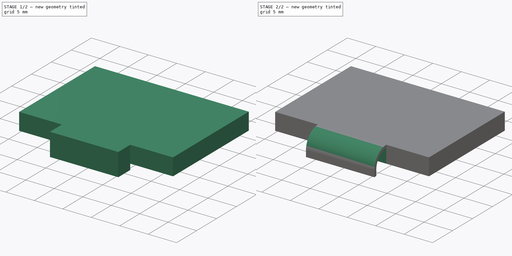
[diagram: build sequence overview — one tinted view per stage of 2, left to right]
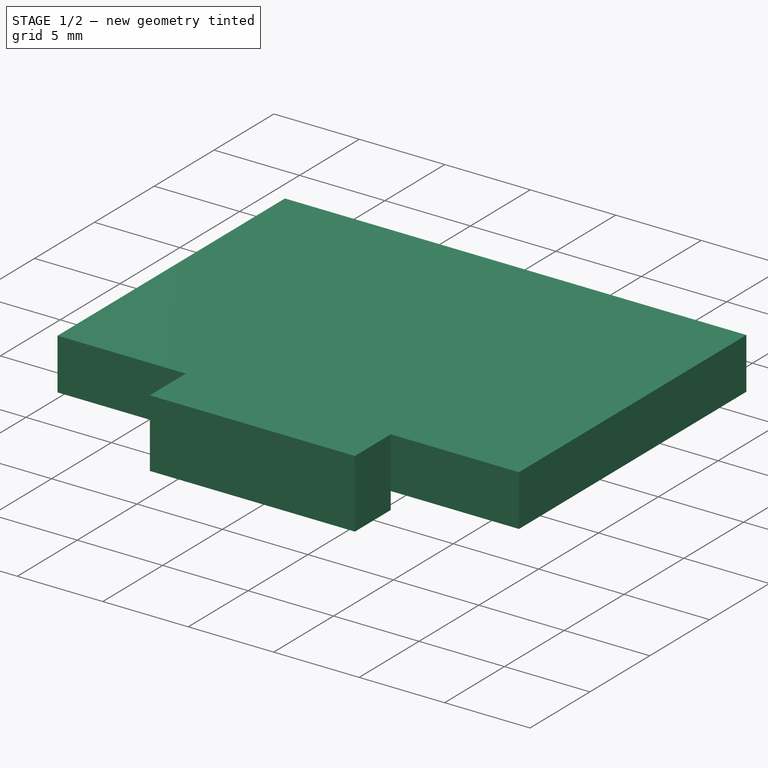
[diagram: stage 1 of 2 — iso view after this stage's code; geometry added in this stage tinted green]
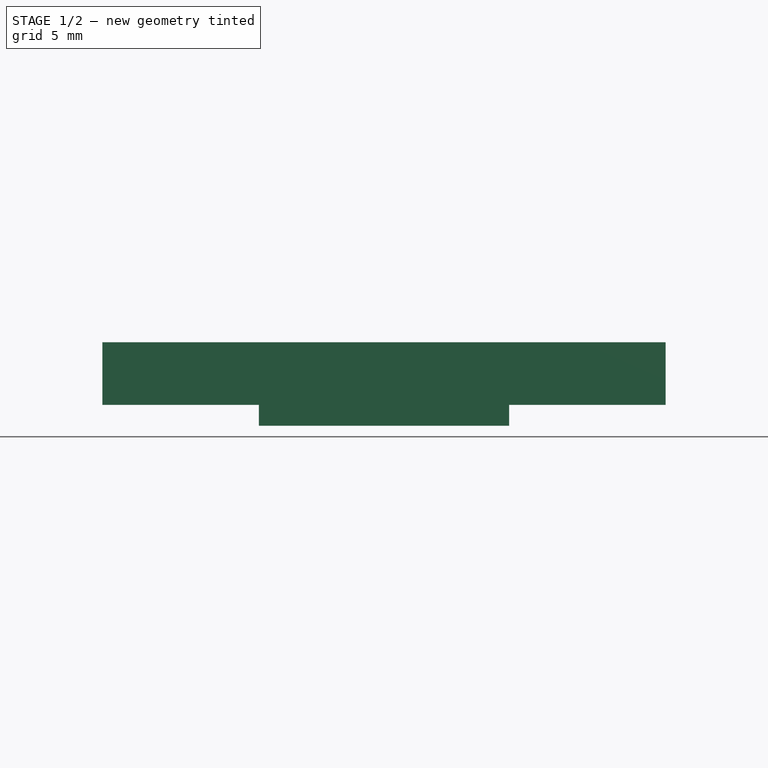
[diagram: stage 1 of 2 — front view after this stage's code; geometry added in this stage tinted green]
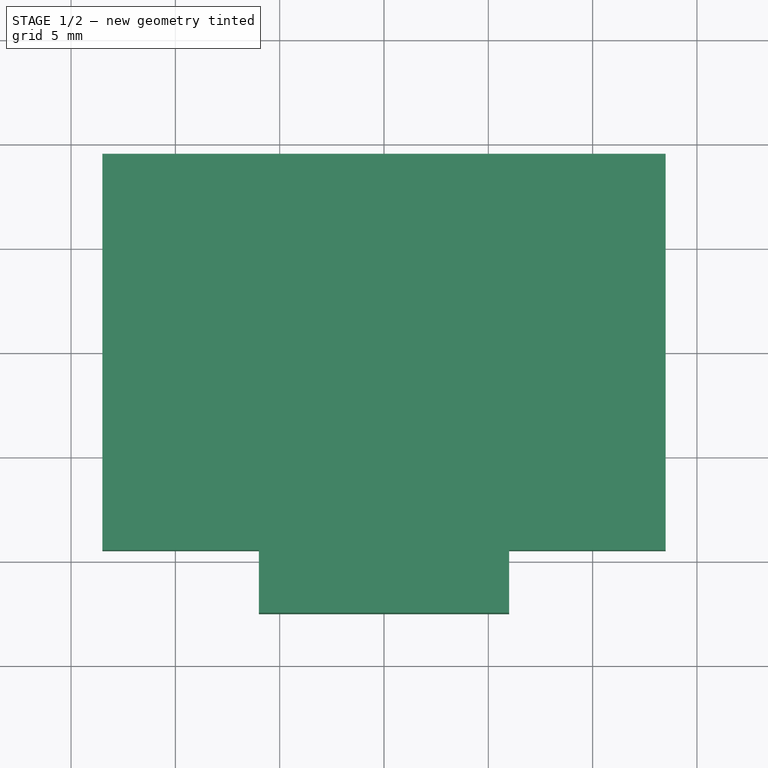
[diagram: stage 1 of 2 — top view after this stage's code; geometry added in this stage tinted green]
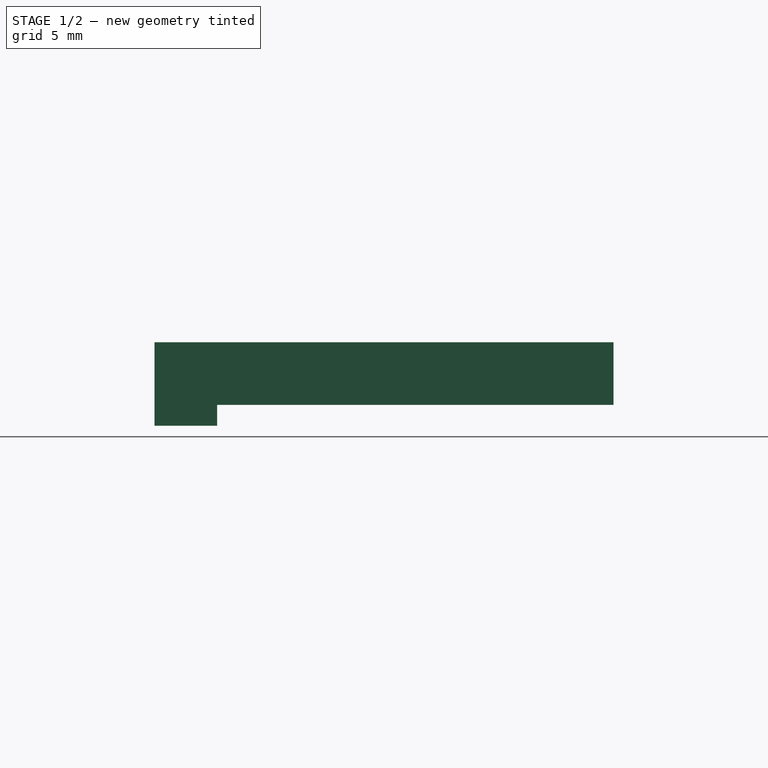
[diagram: stage 1 of 2 — right view after this stage's code; geometry added in this stage tinted green]
FCSTD DOCUMENT  (FreeCAD 0.19R24276 (Git))
Label: Display
License: All rights reserved
LicenseURL: http://en.wikipedia.org/wiki/All_rights_reserved
objects: Sketcher::SketchObject×4, PartDesign::Pocket×3, PartDesign::Pad×1, PartDesign::Body×1
note: 13 computed .brp shape members not serialized (recipe doc carries the construction recipe); baked Part::Feature solids carry a one-line shape summary decoded from their .brp

FEATURE [Sketcher::SketchObject] Sketch
  FullyConstrained = true
  sketch-geometry (8):
    g0: LineSegment StartX=-13.5 StartY=9.5 StartZ=0 EndX=13.5 EndY=9.5 EndZ=0
    g1: LineSegment StartX=13.5 StartY=9.5 StartZ=0 EndX=13.5 EndY=-9.5 EndZ=0
    g2: LineSegment StartX=-13.5 StartY=-9.5 StartZ=0 EndX=-13.5 EndY=9.5 EndZ=0
    g3: LineSegment StartX=6 StartY=-9.5 StartZ=0 EndX=6 EndY=-12.5 EndZ=0
    g4: LineSegment StartX=6 StartY=-12.5 StartZ=0 EndX=-6 EndY=-12.5 EndZ=0
    g5: LineSegment StartX=-6 StartY=-12.5 StartZ=0 EndX=-6 EndY=-9.5 EndZ=0
    g6: LineSegment StartX=-13.5 StartY=-9.5 StartZ=0 EndX=-6 EndY=-9.5 EndZ=0
    g7: LineSegment StartX=6 StartY=-9.5 StartZ=0 EndX=13.5 EndY=-9.5 EndZ=0
  constraints (24):
    c: Coincident(g0,g1)
    c: Coincident(g2,g0)
    c: Horizontal(g0)
    c: Vertical(g1)
    c: Vertical(g2)
    c: DistanceY(g1,g1) = 19
    c: DistanceX(g0,g0) = 27
    c: DistanceX(g0,g-1) = 13.5
    c: DistanceY(g-1,g0) = 9.5
    c: Coincident(g3,g4)
    c: Coincident(g4,g5)
    c: Horizontal(g4)
    c: Vertical(g3)
    c: Vertical(g5)
    c: DistanceX(g4,g4) = 12
    c: DistanceX(g4,g-1) = 6
    c: DistanceY(g3,g3) = 3
    c: Coincident(g6,g2)
    c: Horizontal(g6)
    c: Coincident(g7,g1)
    c: Horizontal(g7)
    c: Equal(g5,g3)
    c: Coincident(g6,g5)
    c: Coincident(g3,g7)
FEATURE [PartDesign::Pad] Pad
  Direction = (1,1,1)
  Length = 4
  Length2 = 100
  Profile = -> Sketch
  Type = 0
FEATURE [Sketcher::SketchObject] Sketch001
  FullyConstrained = true
  MapMode = 5
  Placement = pos=(0,0,0) rot=(1,0,0;3.14159rad)
  Support = -> [Pad]
  sketch-geometry (4):
    g0: LineSegment StartX=-13.5 StartY=9.5 StartZ=0 EndX=13.5 EndY=9.5 EndZ=0
    g1: LineSegment StartX=13.5 StartY=9.5 StartZ=0 EndX=13.5 EndY=-9.5 EndZ=0
    g2: LineSegment StartX=13.5 StartY=-9.5 StartZ=0 EndX=-13.5 EndY=-9.5 EndZ=0
    g3: LineSegment StartX=-13.5 StartY=-9.5 StartZ=0 EndX=-13.5 EndY=9.5 EndZ=0
  constraints (12):
    c: Coincident(g0,g1)
    c: Coincident(g1,g2)
    c: Coincident(g2,g3)
    c: Coincident(g3,g0)
    c: Horizontal(g0)
    c: Horizontal(g2)
    c: Vertical(g1)
    c: Vertical(g3)
    c: DistanceX(g0,g0) = 27
    c: DistanceY(g1,g1) = 19
    c: DistanceY(g1,g-1) = 9.5
    c: DistanceX(g0,g-1) = 13.5
FEATURE [PartDesign::Pocket] Pocket
  BaseFeature = -> Pad
  Length = 1
  Length2 = 100
  Profile = -> Sketch001
  Type = 0
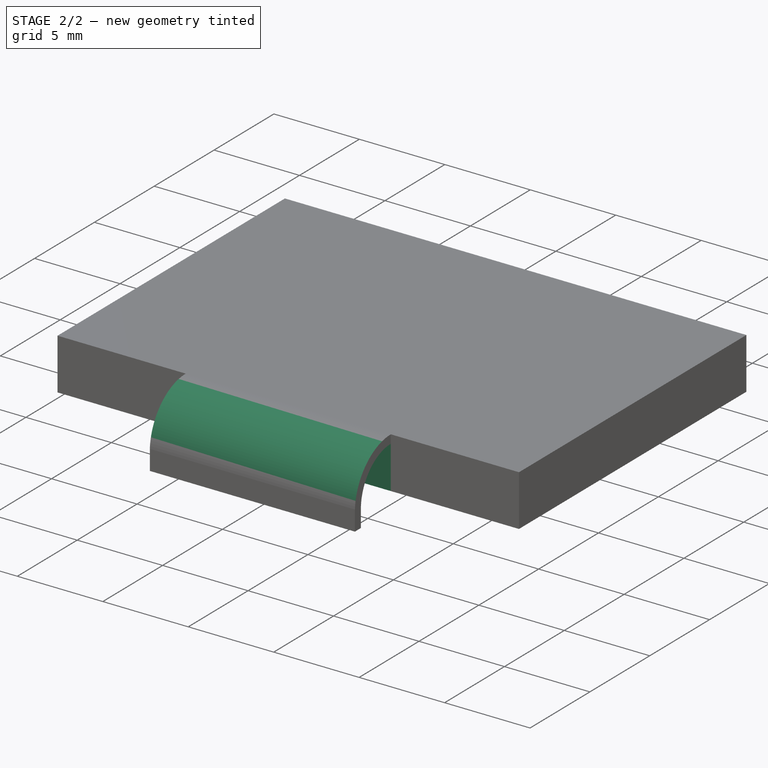
[diagram: stage 2 of 2 — iso view after this stage's code; geometry added in this stage tinted green]
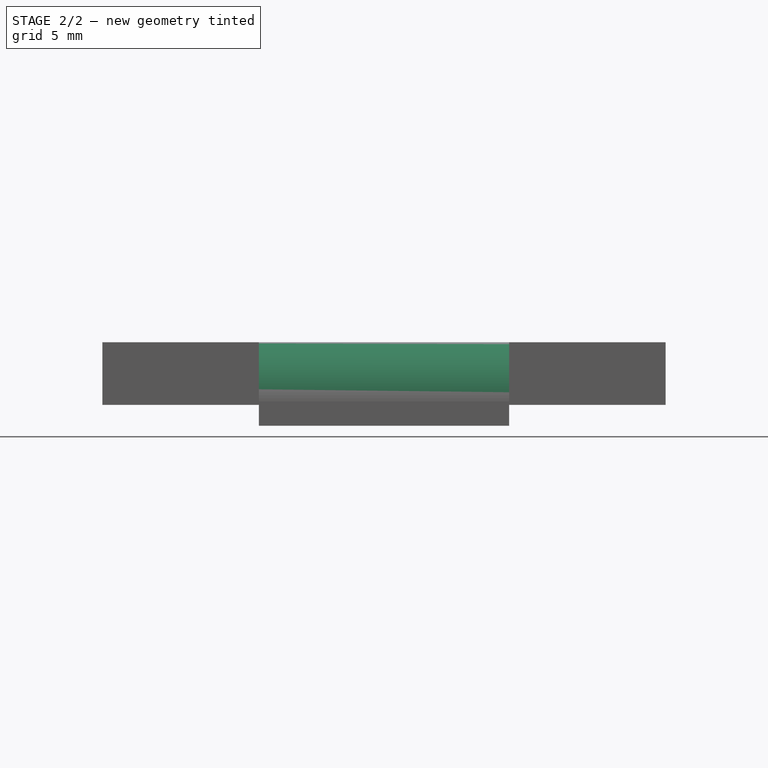
[diagram: stage 2 of 2 — front view after this stage's code; geometry added in this stage tinted green]
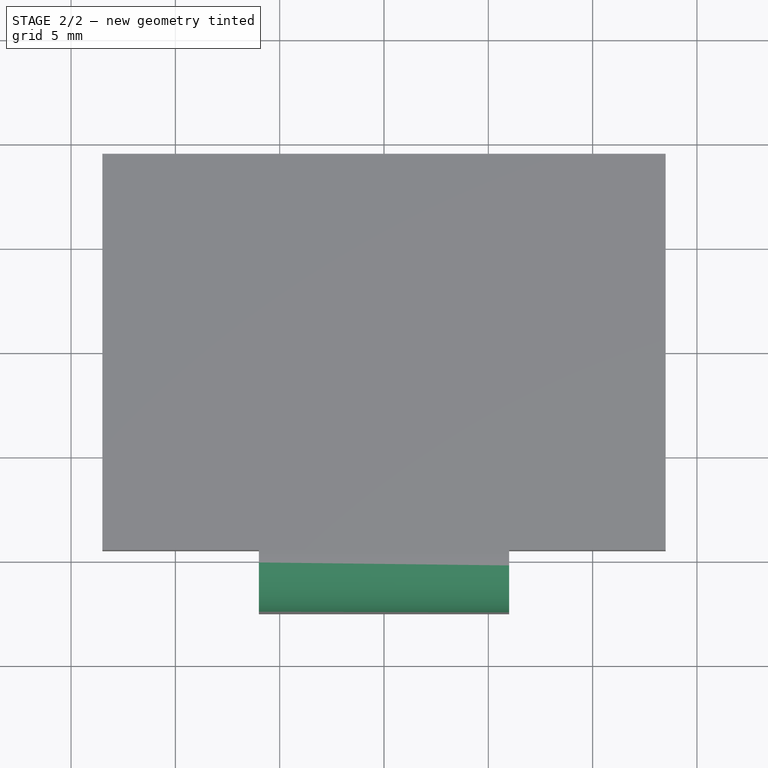
[diagram: stage 2 of 2 — top view after this stage's code; geometry added in this stage tinted green]
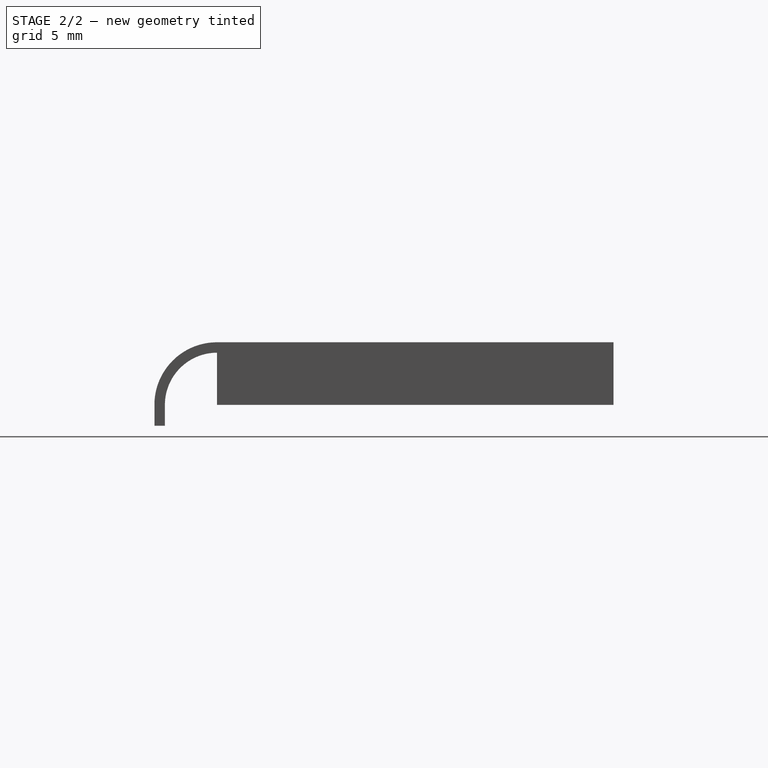
[diagram: stage 2 of 2 — right view after this stage's code; geometry added in this stage tinted green]
FEATURE [Sketcher::SketchObject] Sketch002
  FullyConstrained = false
  MapMode = 5
  Placement = pos=(-13.5,0,0) rot=(0.57735,-0.57735,-0.57735;2.0944rad)
  Support = -> [Pocket]
  sketch-geometry (5):
    g0: ArcOfCircle CenterX=9.50474 CenterY=1 CenterZ=0 NormalX=0 NormalY=0 NormalZ=1 AngleXU=0 Radius=3 StartAngle=1e-16 EndAngle=1.5708
    g1: LineSegment StartX=9.50474 StartY=4 StartZ=0 EndX=9.50474 EndY=5.57242 EndZ=0
    g2: LineSegment StartX=9.50474 StartY=5.57242 StartZ=0 EndX=13.0332 EndY=5.57242 EndZ=0
    g3: LineSegment StartX=13.0332 StartY=5.57242 StartZ=0 EndX=13.0332 EndY=1 EndZ=0
    g4: LineSegment StartX=13.0332 StartY=1 StartZ=0 EndX=12.5047 EndY=1 EndZ=0
  constraints (13):
    c: Angle(g0) = 1.5708
    c: DistanceX(g0,g0) = 0
    c: DistanceY(g-1,g0) = 4
    c: DistanceY(g-1,g0) = 1
    c: Coincident(g1,g0)
    c: Vertical(g1)
    c: Coincident(g2,g1)
    c: Horizontal(g2)
    c: Coincident(g3,g2)
    c: Vertical(g3)
    c: Coincident(g4,g3)
    c: Coincident(g4,g0)
    c: Horizontal(g4)
FEATURE [PartDesign::Pocket] Pocket001
  BaseFeature = -> Pocket
  Length = 27
  Length2 = 100
  Profile = -> Sketch002
  Type = 0
FEATURE [Sketcher::SketchObject] Sketch003
  FullyConstrained = false
  MapMode = 5
  Placement = pos=(-13.5,0,0) rot=(0.57735,-0.57735,-0.57735;2.0944rad)
  Support = -> [Pocket001]
  sketch-geometry (7):
    g0: ArcOfCircle CenterX=9.50152 CenterY=1 CenterZ=0 NormalX=0 NormalY=0 NormalZ=1 AngleXU=0 Radius=2.5 StartAngle=1e-16 EndAngle=1.5708
    g1: LineSegment StartX=10.1611 StartY=-0.269266 StartZ=0 EndX=12.0015 EndY=-0.269266 EndZ=0
    g2: LineSegment StartX=12.0015 StartY=-0.269266 StartZ=0 EndX=12.0015 EndY=1 EndZ=0
    g3: LineSegment StartX=9.50152 StartY=1 StartZ=0 EndX=9.32419 EndY=1 EndZ=0
    g4: LineSegment StartX=9.32419 StartY=1 StartZ=0 EndX=9.32419 EndY=-0.269266 EndZ=0
    g5: LineSegment StartX=9.32419 StartY=-0.269266 StartZ=0 EndX=10.1611 EndY=-0.269266 EndZ=0
    g6: LineSegment StartX=9.50152 StartY=3.5 StartZ=0 EndX=9.50152 EndY=1 EndZ=0
  constraints (17):
    c: Angle(g0) = 1.5708
    c: DistanceX(g0,g0) = 0
    c: DistanceY(g-1,g0) = 3.5
    c: DistanceY(g-1,g0) = 1
    c: Horizontal(g1)
    c: Coincident(g2,g1)
    c: Coincident(g2,g0)
    c: Vertical(g2)
    c: Coincident(g3,g0)
    c: Horizontal(g3)
    c: Coincident(g4,g3)
    c: Vertical(g4)
    c: Coincident(g5,g4)
    c: Coincident(g5,g1)
    c: Horizontal(g5)
    c: Coincident(g6,g0)
    c: Coincident(g6,g0)
FEATURE [PartDesign::Pocket] Pocket002
  BaseFeature = -> Pocket001
  Length = 27
  Length2 = 100
  Profile = -> Sketch003
  Type = 0
FEATURE [PartDesign::Body] Body
  Group = -> [Sketch,Pad,Sketch001,Pocket,Sketch002,Pocket001,Sketch003,Pocket002]
  Origin = -> Origin
  Tip = -> Pocket002
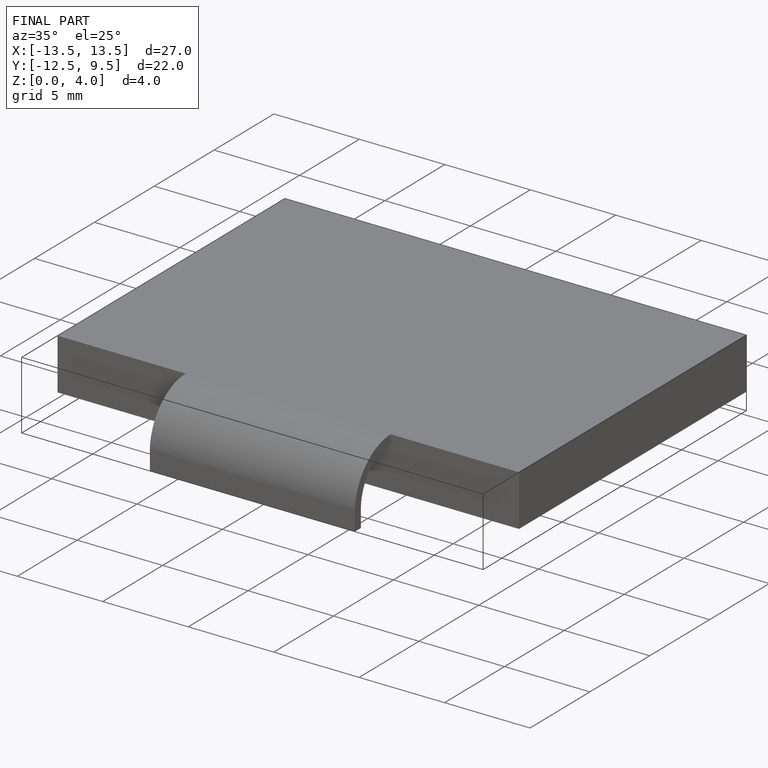
[diagram: finished part — iso view with bounding-box wireframe]
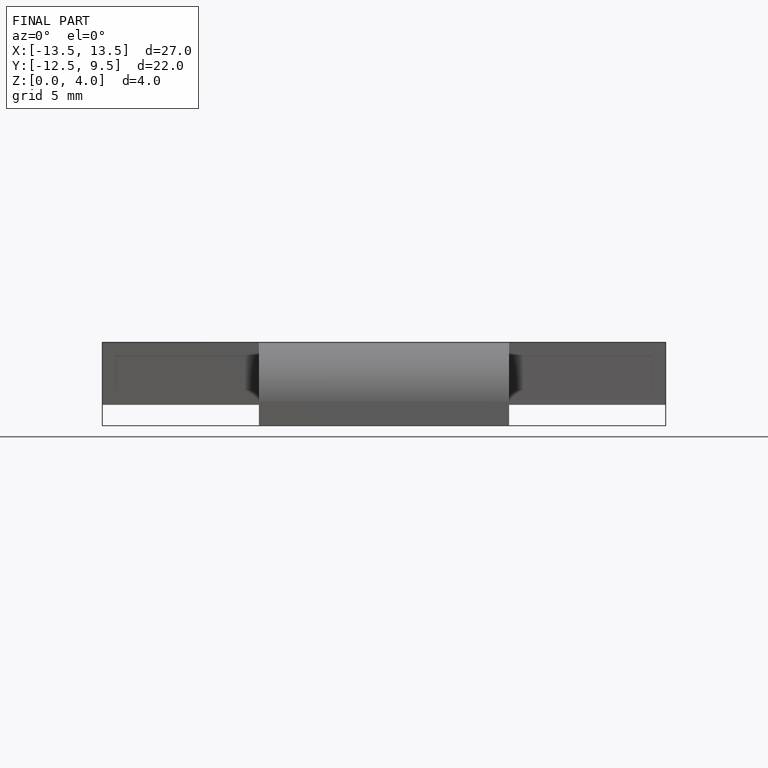
[diagram: finished part — front view with bounding-box wireframe]
